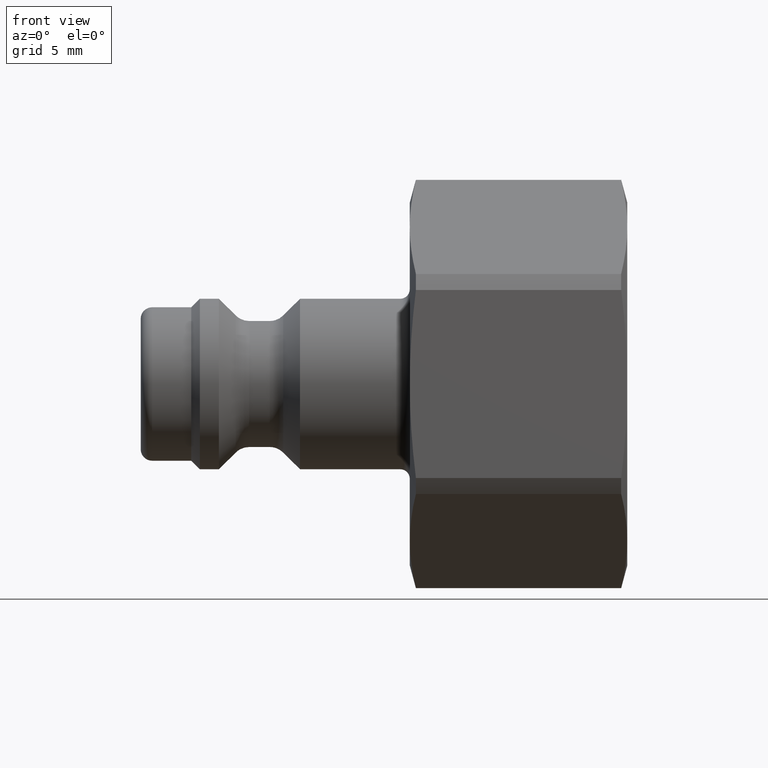
[diagram: clean part render]
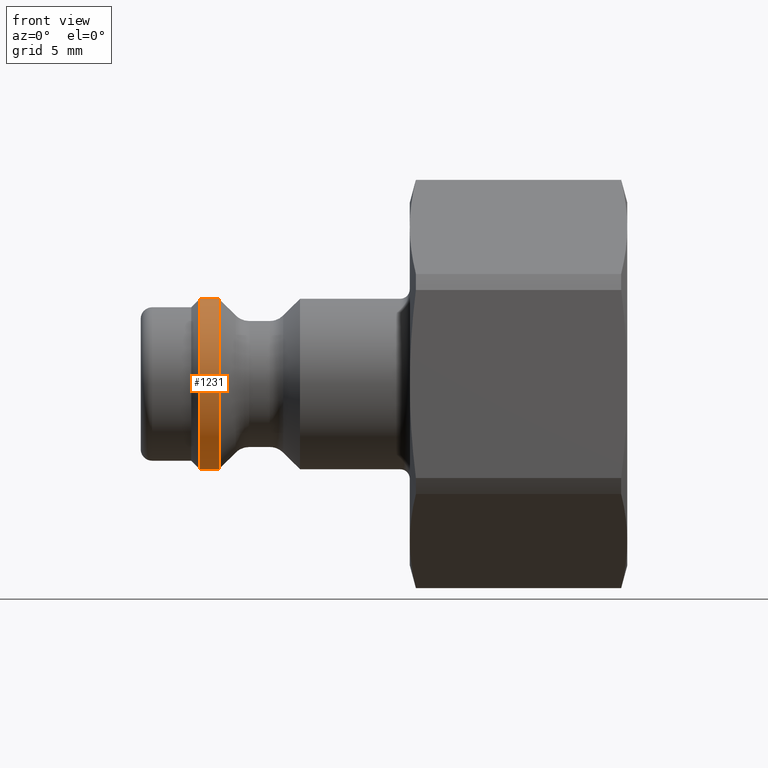
[diagram: same view with one face highlighted and labeled with its STEP entity id]
A machine part, front view. The second image highlights one B-rep face of the part: STEP entity #1231.
In plain terms, the highlighted cylindrical surface (bore or boss wall) has radius 4.5 mm, axis along (1, 0, 0).
Its self-contained STEP definition (entity closure, byte-faithful):
#234=CARTESIAN_POINT('',(4.1,4.5,0.0));
#235=VERTEX_POINT('',#234);
#236=CARTESIAN_POINT('',(4.1,0.0,0.0));
#237=DIRECTION('',(1.0,0.0,0.0));
#238=DIRECTION('',(0.0,1.0,0.0));
#239=AXIS2_PLACEMENT_3D('',#236,#237,#238);
#240=CIRCLE('',#239,4.5);
#241=EDGE_CURVE('',#235,#235,#240,.T.);
#1205=CARTESIAN_POINT('',(3.1,4.5,0.0));
#1206=VERTEX_POINT('',#1205);
#1207=CARTESIAN_POINT('',(3.1,0.0,0.0));
#1208=DIRECTION('',(1.0,0.0,0.0));
#1209=DIRECTION('',(0.0,1.0,0.0));
#1210=AXIS2_PLACEMENT_3D('',#1207,#1208,#1209);
#1211=CIRCLE('',#1210,4.5);
#1212=EDGE_CURVE('',#1206,#1206,#1211,.T.);
#1220=CARTESIAN_POINT('',(3.6,0.0,0.0));
#1221=DIRECTION('',(1.0,0.0,0.0));
#1222=DIRECTION('',(0.0,1.0,0.0));
#1223=AXIS2_PLACEMENT_3D('',#1220,#1221,#1222);
#1224=CYLINDRICAL_SURFACE('',#1223,4.5);
#1225=ORIENTED_EDGE('',*,*,#241,.F.);
#1226=EDGE_LOOP('',(#1225));
#1227=FACE_OUTER_BOUND('',#1226,.T.);
#1228=ORIENTED_EDGE('',*,*,#1212,.T.);
#1229=EDGE_LOOP('',(#1228));
#1230=FACE_BOUND('',#1229,.T.);
#1231=ADVANCED_FACE('',(#1227,#1230),#1224,.T.);